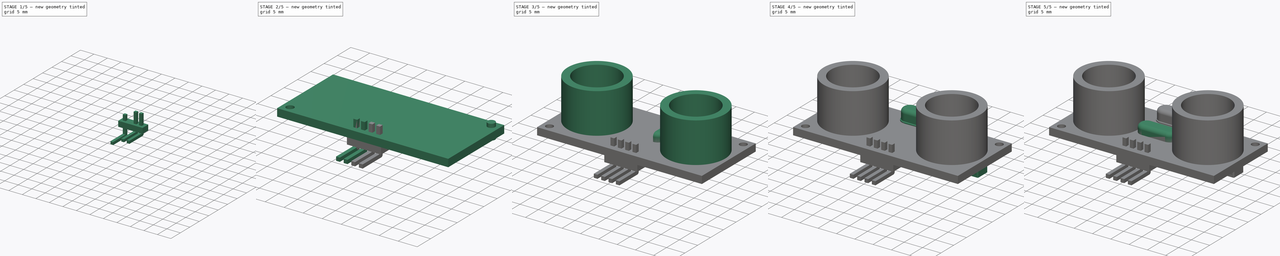
[diagram: build sequence overview — one tinted view per stage of 5, left to right]
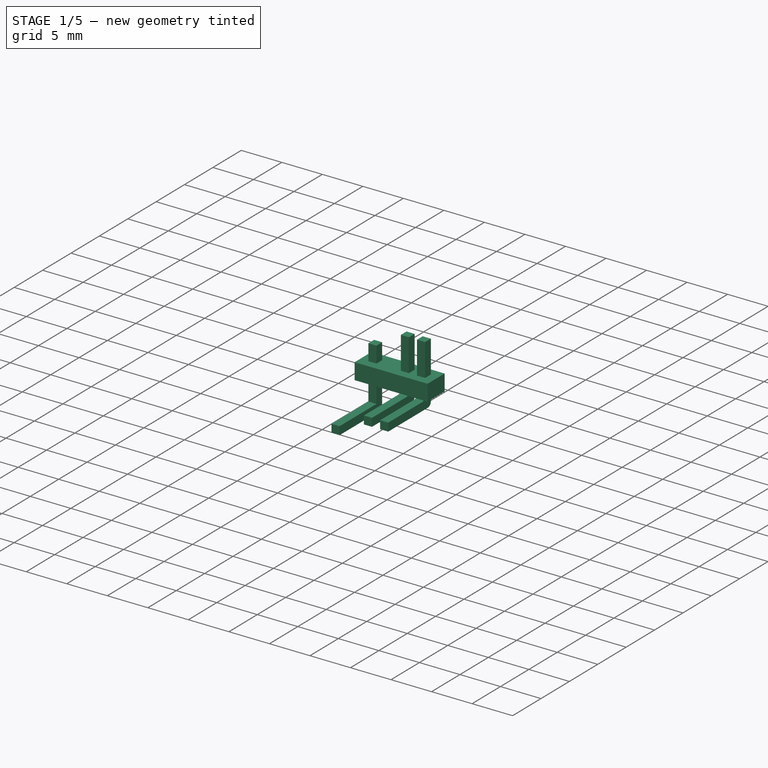
[diagram: stage 1 of 5 — iso view after this stage's code; geometry added in this stage tinted green]
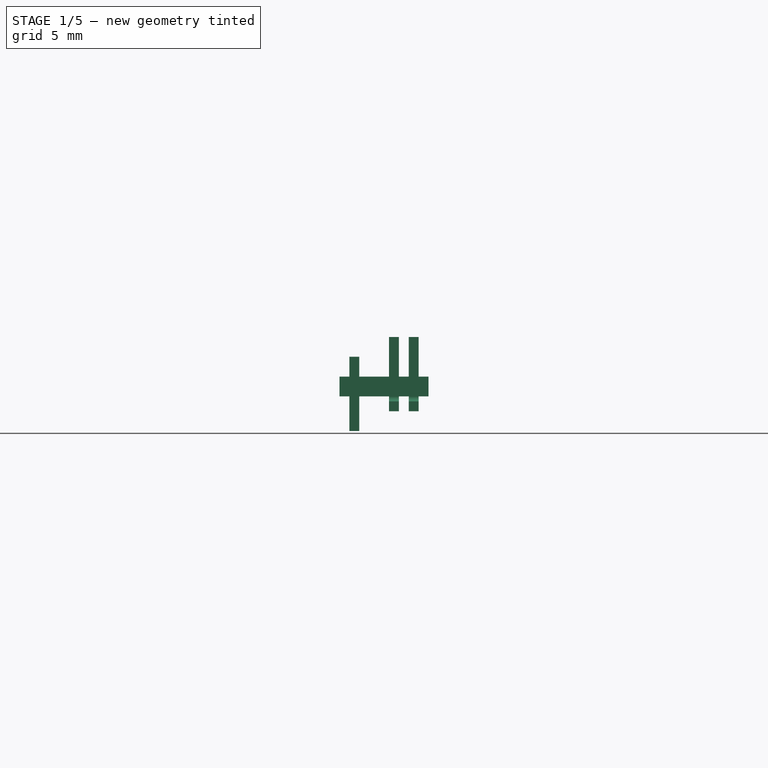
[diagram: stage 1 of 5 — front view after this stage's code; geometry added in this stage tinted green]
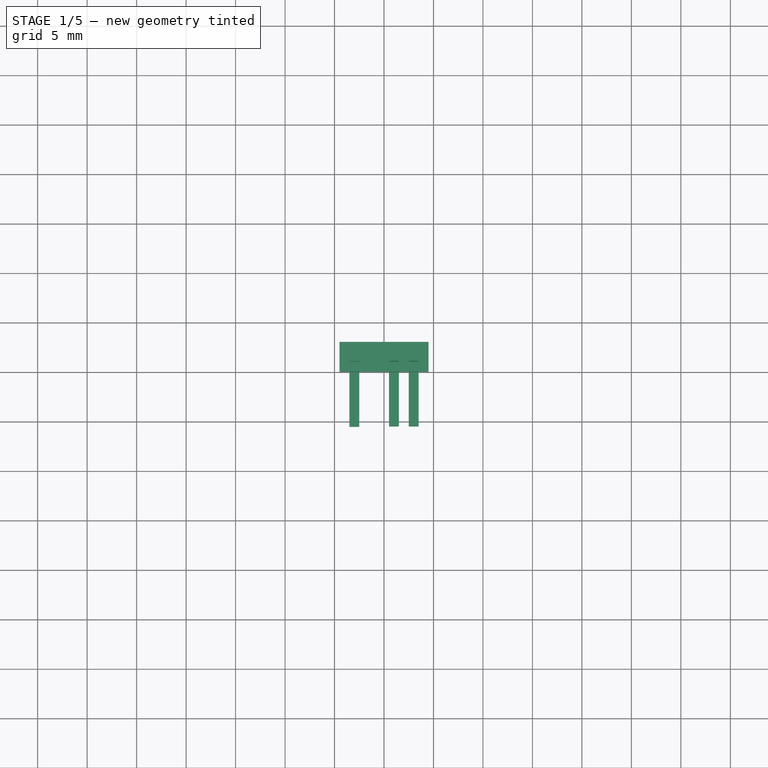
[diagram: stage 1 of 5 — top view after this stage's code; geometry added in this stage tinted green]
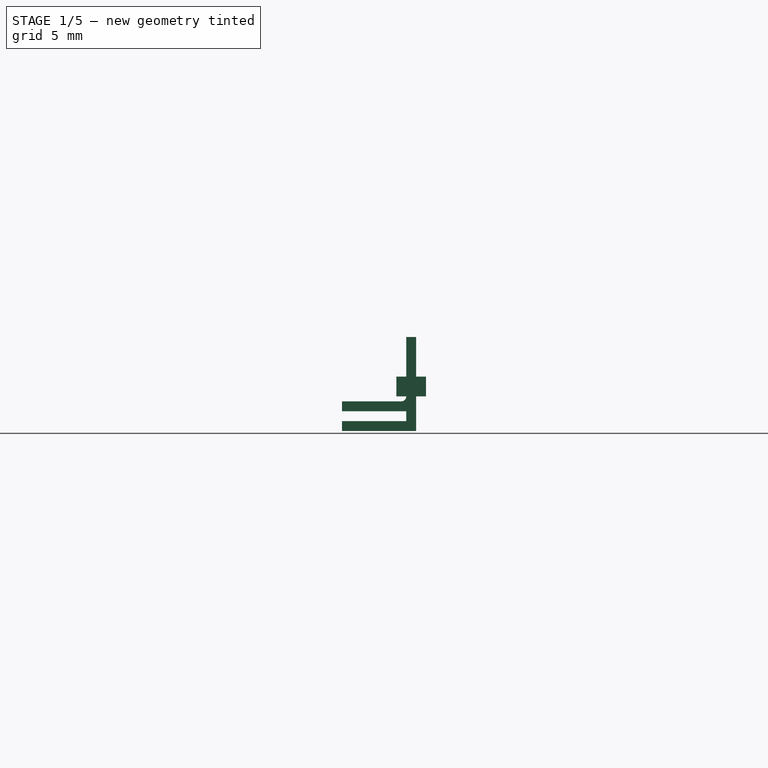
[diagram: stage 1 of 5 — right view after this stage's code; geometry added in this stage tinted green]
FCSTD DOCUMENT  (FreeCAD 0.18R16117 (Git))
Label: Board-HC-SR04
License: All rights reserved
LicenseURL: http://en.wikipedia.org/wiki/All_rights_reserved
objects: Part::MultiFuse×18, Sketcher::SketchObject×11, Part::Box×10, Part::Cylinder×8, Part::Fillet×8, Part::FeaturePython×6, PartDesign::Pad×5, App::MeasureDistance×5, Part::Cut×4, App::DocumentObjectGroup×3, Part::Feature×3, PartDesign::Revolution×2, Part::Mirroring×2, PartDesign::Pocket×2, Part::Sweep×1
note: 89 computed .brp shape members not serialized (recipe doc carries the construction recipe); baked Part::Feature solids carry a one-line shape summary decoded from their .brp

FEATURE [Part::Box] Box003  label="Conector002"
  AttacherType = Attacher::AttachEngine3D
  Height = 7.5
  Length = 1
  Placement = pos=(-3.5,-9,-5.5) rot=(0,0,1;0rad)
  Width = 1
FEATURE [Part::Box] Box004  label="Cubo001"
  AttacherType = Attacher::AttachEngine3D
  Height = 1
  Length = 1
  Placement = pos=(-3.5,-15.5,-5.5) rot=(0,0,1;0rad)
  Width = 7.5
FEATURE [Part::Box] Box005  label="Conector004"
  AttacherType = Attacher::AttachEngine3D
  Height = 7.5
  Length = 1
  Placement = pos=(-3.5,-9,-5.5) rot=(0,0,1;0rad)
  Width = 1
FEATURE [Part::Box] Box006  label="Cubo002"
  AttacherType = Attacher::AttachEngine3D
  Height = 1
  Length = 1
  Placement = pos=(-3.5,-15.5,-5.5) rot=(0,0,1;0rad)
  Width = 7.5
FEATURE [Part::MultiFuse] Fusion007
  Shapes = -> [Box005,Box006]
FEATURE [Part::Fillet] Fillet004
  Base = -> Fusion007
  Edges = 1 edges r=0.5: [Edge7]
FEATURE [Part::Fillet] Fillet005  label="Conector005"
  Base = -> Fillet004
  Edges = 1 edges r=0.5: [Edge20]
  Placement = pos=(4,0,2) rot=(0,0,1;0rad)
FEATURE [Part::Box] Box007  label="Conector006"
  AttacherType = Attacher::AttachEngine3D
  Height = 7.5
  Length = 1
  Placement = pos=(-3.5,-9,-5.5) rot=(0,0,1;0rad)
  Width = 1
FEATURE [Part::Box] Box008  label="Cubo003"
  AttacherType = Attacher::AttachEngine3D
  Height = 1
  Length = 1
  Placement = pos=(-3.5,-15.5,-5.5) rot=(0,0,1;0rad)
  Width = 7.5
FEATURE [Part::MultiFuse] Fusion008
  Shapes = -> [Box007,Box008]
FEATURE [Part::Fillet] Fillet006
  Base = -> Fusion008
  Edges = 1 edges r=0.5: [Edge7]
FEATURE [Part::Fillet] Fillet007  label="Conector007"
  Base = -> Fillet006
  Edges = 1 edges r=0.5: [Edge20]
  Placement = pos=(6,0,2) rot=(0,0,1;0rad)
FEATURE [Part::Box] Box009  label="Separador_conectores"
  AttacherType = Attacher::AttachEngine3D
  Height = 2
  Length = 9
  Placement = pos=(-4.5,-10,-2) rot=(0,0,1;0rad)
  Width = 3
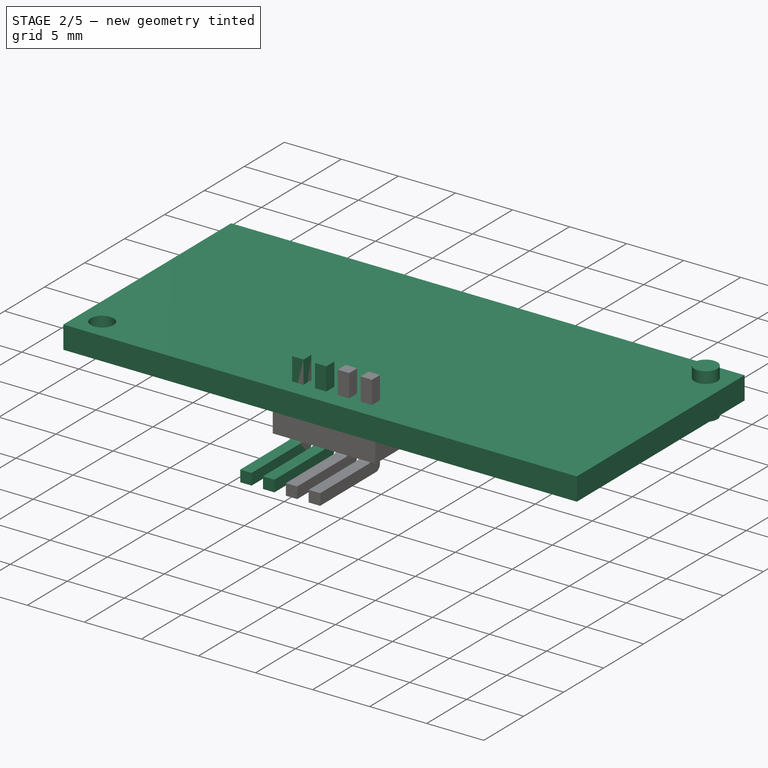
[diagram: stage 2 of 5 — iso view after this stage's code; geometry added in this stage tinted green]
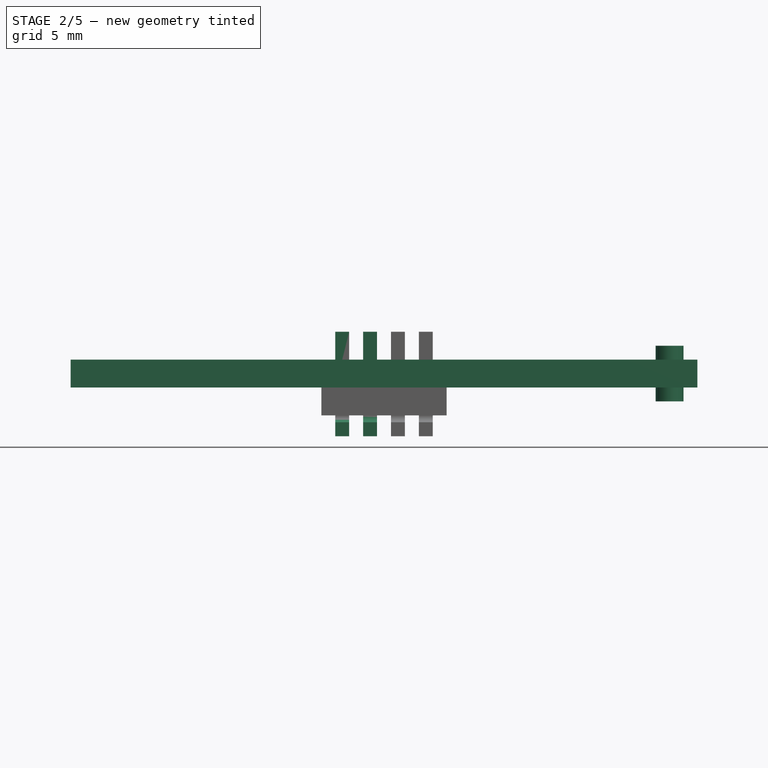
[diagram: stage 2 of 5 — front view after this stage's code; geometry added in this stage tinted green]
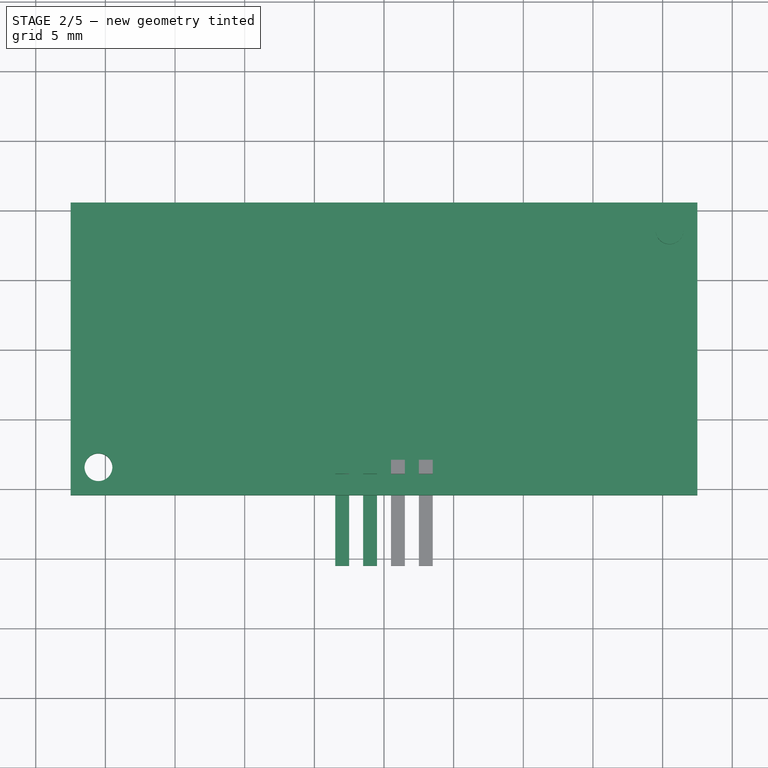
[diagram: stage 2 of 5 — top view after this stage's code; geometry added in this stage tinted green]
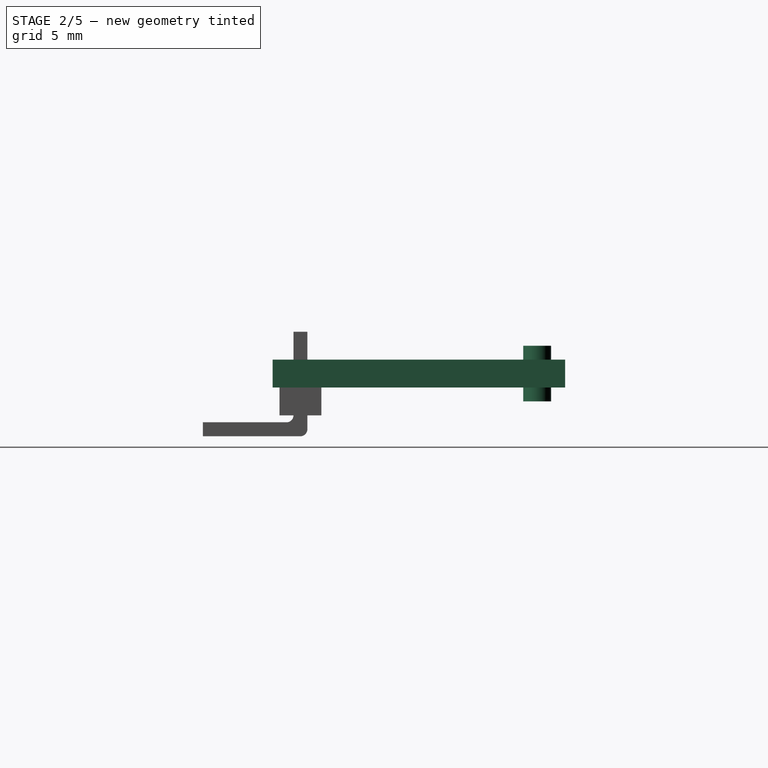
[diagram: stage 2 of 5 — right view after this stage's code; geometry added in this stage tinted green]
FEATURE [App::DocumentObjectGroup] Group  label="xtal-src"
  Group = -> [Fusion001,Pad002,Pocket,Pad003]
FEATURE [Part::Cylinder] Cylinder004  label="Taladro1"
  Angle = 360
  AttacherType = Attacher::AttachEngine3D
  Height = 4
  Placement = pos=(-20.5,-8.5,-1) rot=(0,0,1;0rad)
  Radius = 1
FEATURE [Part::Cylinder] Cylinder005  label="Taladro2"
  Angle = 360
  AttacherType = Attacher::AttachEngine3D
  Height = 4
  Placement = pos=(20.5,8.5,-1) rot=(0,0,1;0rad)
  Radius = 1
FEATURE [Part::Box] Box001  label="Conector"
  AttacherType = Attacher::AttachEngine3D
  Height = 7.5
  Length = 1
  Placement = pos=(-3.5,-9,-5.5) rot=(0,0,1;0rad)
  Width = 1
FEATURE [Part::Box] Box002  label="Cubo"
  AttacherType = Attacher::AttachEngine3D
  Height = 1
  Length = 1
  Placement = pos=(-3.5,-15.5,-5.5) rot=(0,0,1;0rad)
  Width = 7.5
FEATURE [Part::MultiFuse] Fusion005
  Shapes = -> [Box001,Box002]
FEATURE [Part::Fillet] Fillet
  Base = -> Fusion005
  Edges = 1 edges r=0.5: [Edge7]
FEATURE [Part::Fillet] Fillet001  label="Conector1"
  Base = -> Fillet
  Edges = 1 edges r=0.5: [Edge20]
  Placement = pos=(0,0,2) rot=(0,0,1;0rad)
FEATURE [Part::MultiFuse] Fusion006
  Shapes = -> [Box003,Box004]
FEATURE [Part::Fillet] Fillet002
  Base = -> Fusion006
  Edges = 1 edges r=0.5: [Edge7]
FEATURE [Part::Fillet] Fillet003  label="Conector003"
  Base = -> Fillet002
  Edges = 1 edges r=0.5: [Edge20]
  Placement = pos=(2,0,2) rot=(0,0,1;0rad)
FEATURE [Part::Box] Box  label="Placa base"
  AttacherType = Attacher::AttachEngine3D
  Height = 2
  Length = 45
  Placement = pos=(-22.5,-10.5,0) rot=(0,0,1;0rad)
  Width = 21
FEATURE [Part::Cut] Cut002
  Base = -> Box
  Tool = -> Cylinder004
FEATURE [Part::Feature] Fusion010  label="14SOIC"
  Placement = pos=(-22.5,6,0) rot=(1,0,0;3.14159rad)
  shape: bbox 5.802 x 8.7 x 1.655 mm, 194 faces (baked)
FEATURE [Part::Feature] Fusion011  label="14SOIC001"
  Placement = pos=(23.5,2.5,0) rot=(0.707107,-0.707107,0;3.14159rad)
  shape: bbox 8.7 x 5.802 x 1.655 mm, 194 faces (baked)
FEATURE [Part::Feature] Fusion012  label="14SOIC002"
  Placement = pos=(-5.5,-1.5,0) rot=(0.707107,0.707107,0;3.14159rad)
  shape: bbox 8.7 x 5.802 x 1.655 mm, 194 faces (baked)
FEATURE [Part::MultiFuse] Fusion013
  Shapes = -> [Fillet001,Fillet003,Fillet005,Fillet007,Box009]
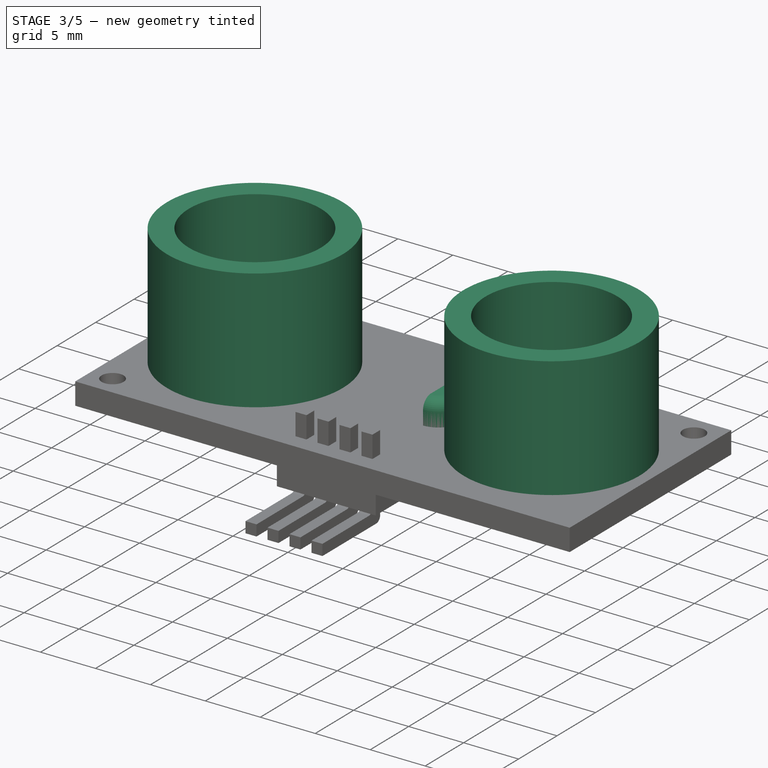
[diagram: stage 3 of 5 — iso view after this stage's code; geometry added in this stage tinted green]
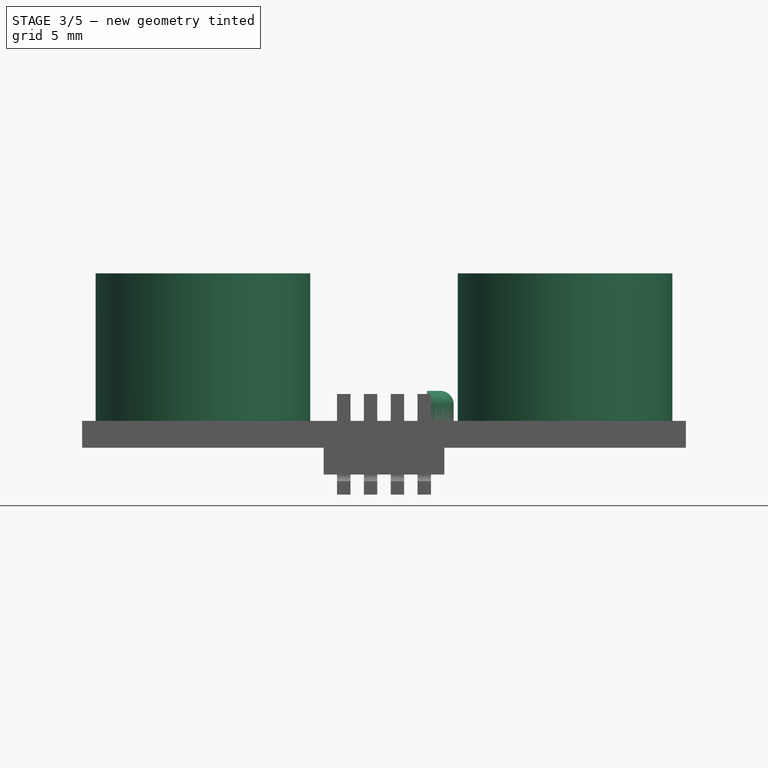
[diagram: stage 3 of 5 — front view after this stage's code; geometry added in this stage tinted green]
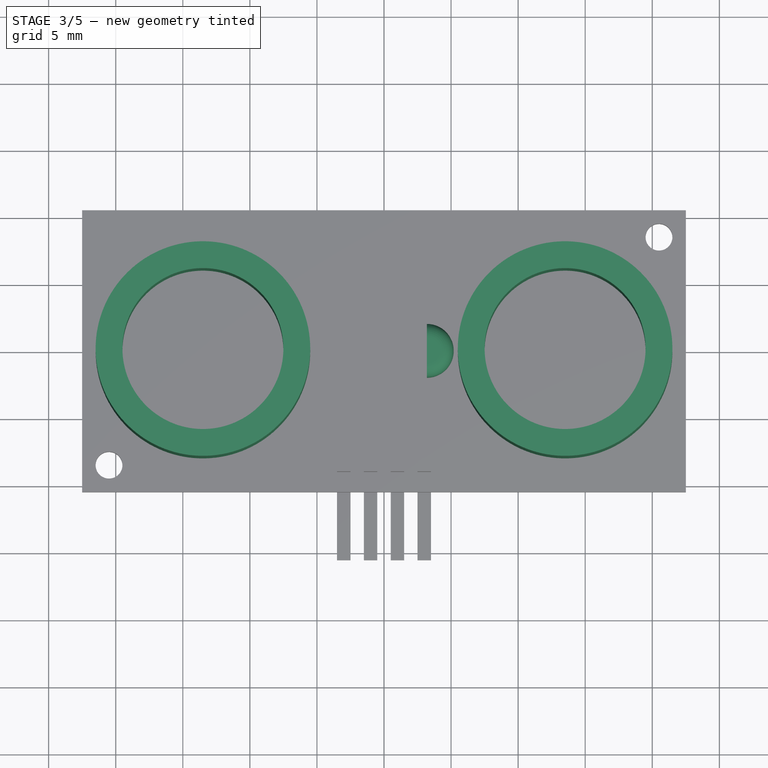
[diagram: stage 3 of 5 — top view after this stage's code; geometry added in this stage tinted green]
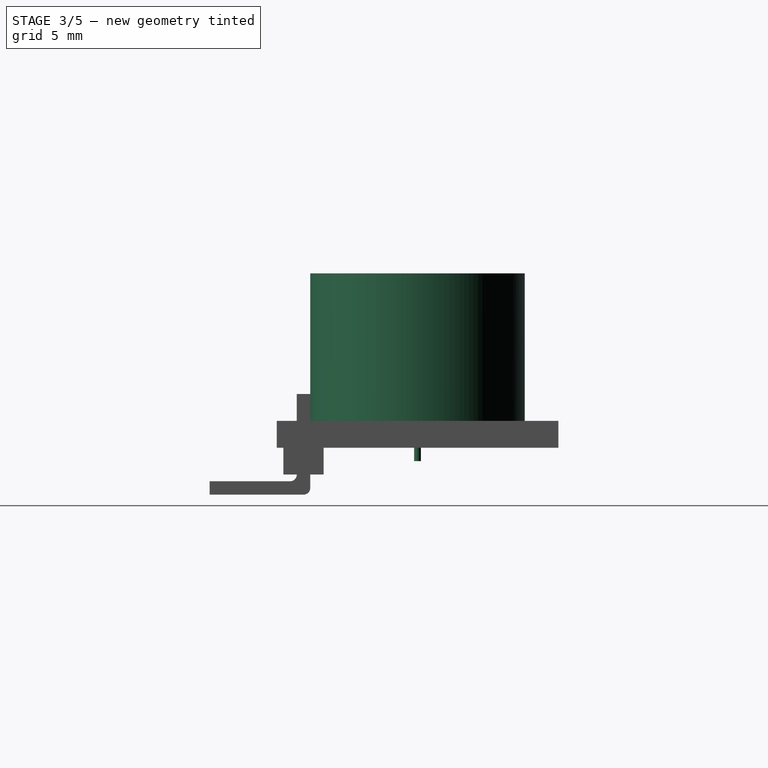
[diagram: stage 3 of 5 — right view after this stage's code; geometry added in this stage tinted green]
FEATURE [Part::Cylinder] Cylinder  label="Cilindro"
  Angle = 360
  AttacherType = Attacher::AttachEngine3D
  Height = 11
  Placement = pos=(-13.5,0,2) rot=(0,0,1;0rad)
  Radius = 8
FEATURE [Part::Cylinder] Cylinder001  label="Cilindro001"
  Angle = 360
  AttacherType = Attacher::AttachEngine3D
  Height = 13
  Placement = pos=(-13.5,0,1) rot=(0,0,1;0rad)
  Radius = 6
FEATURE [Part::Cut] Cut  label="Sensor T"
  Base = -> Cylinder
  Tool = -> Cylinder001
FEATURE [Part::Cylinder] Cylinder002  label="Cilindro002"
  Angle = 360
  AttacherType = Attacher::AttachEngine3D
  Height = 11
  Placement = pos=(-13.5,0,2) rot=(0,0,1;0rad)
  Radius = 8
FEATURE [Part::Cylinder] Cylinder003  label="Cilindro003"
  Angle = 360
  AttacherType = Attacher::AttachEngine3D
  Height = 13
  Placement = pos=(-13.5,0,1) rot=(0,0,1;0rad)
  Radius = 6
FEATURE [Part::Cut] Cut001  label="Sensor R"
  Base = -> Cylinder002
  Placement = pos=(27,0,0) rot=(0,0,1;0rad)
  Tool = -> Cylinder003
FEATURE [Sketcher::SketchObject] Sketch006  label="xtal-side-sketch002"
  MapMode = 5
  Placement = pos=(3.195,0.005,4e-15) rot=(0.57735,0.57735,0.57735;2.0944rad)
  sketch-geometry (7):
    g0: LineSegment StartX=0 StartY=4.24 StartZ=0 EndX=-1 EndY=4.24 EndZ=0
    g1: LineSegment StartX=-2 StartY=3.24 StartZ=0 EndX=-2 EndY=1.48 EndZ=0
    g2: LineSegment StartX=-2.2 StartY=1.28 StartZ=0 EndX=-2.2 EndY=0.64 EndZ=0
    g3: LineSegment StartX=0 StartY=4.24 StartZ=0 EndX=0 EndY=0.64 EndZ=0
    g4: ArcOfCircle CenterX=-1 CenterY=3.24 CenterZ=0 NormalX=0 NormalY=0 NormalZ=1 AngleXU=0 Radius=1 StartAngle=1.5708 EndAngle=3.14159
    g5: ArcOfCircle CenterX=-2.2 CenterY=1.48 CenterZ=0 NormalX=0 NormalY=0 NormalZ=1 AngleXU=0 Radius=0.2 StartAngle=4.71239 EndAngle=6.28319
    g6: LineSegment StartX=-2.2 StartY=0.64 StartZ=0 EndX=0 EndY=0.64 EndZ=0
  constraints (20):
    c: Horizontal(g0)
    c: Vertical(g1)
    c: Vertical(g2)
    c: PointOnObject(g0,g-2)
    c: Vertical(g3)
    c: Coincident(g3,g0)
    c: Tangent(g0,g4)
    c: Tangent(g1,g4)
    c: Tangent(g1,g5)
    c: Radius(g4) = 1
    c: DistanceX(g0) = -1
    c: DistanceY(g3) = -3.6
    c: Horizontal(g6)
    c: Coincident(g6,g3)
    c: Coincident(g6,g2)
    c: DistanceY(g-1,g3) = 0.64
    c: DistanceY(g1) = -1.76
    c: Coincident(g2,g5)
    c: Perpendicular(g2,g5)
    c: Radius(g5) = 0.2
FEATURE [PartDesign::Revolution] Revolution002  label="xtal-side002"
  Angle = 180
  Axis = (0,0,1)
  Base = (3.195,0.005,0)
  Placement = pos=(3.195,0.005,4e-15) rot=(0.57735,0.57735,0.57735;2.0944rad)
  Profile = -> Sketch006
  ReferenceAxis = -> Sketch006 [V_Axis]
FEATURE [Part::Cylinder] Cylinder006  label="pin_001"
  Angle = 360
  AttacherType = Attacher::AttachEngine3D
  Height = 2
  Placement = pos=(-2.5,0,-1) rot=(0,0,1;0rad)
  Radius = 0.25
FEATURE [Part::Cylinder] Cylinder007  label="pin_002"
  Angle = 360
  AttacherType = Attacher::AttachEngine3D
  Height = 2
  Placement = pos=(2.5,0,-1) rot=(0,0,1;0rad)
  Radius = 0.25
FEATURE [Part::MultiFuse] Fusion003  label="pins"
  Shapes = -> [Cylinder006,Cylinder007]
FEATURE [Part::Cut] Cut003  label="Placa perforada"
  Base = -> Cut002
  Tool = -> Cylinder005
FEATURE [Part::MultiFuse] Fusion014
  Shapes = -> [Cut003,Fusion013]
FEATURE [Part::MultiFuse] Fusion015
  Shapes = -> [Fusion014,Cut]
FEATURE [Part::MultiFuse] Fusion016
  Shapes = -> [Fusion015,Cut001]
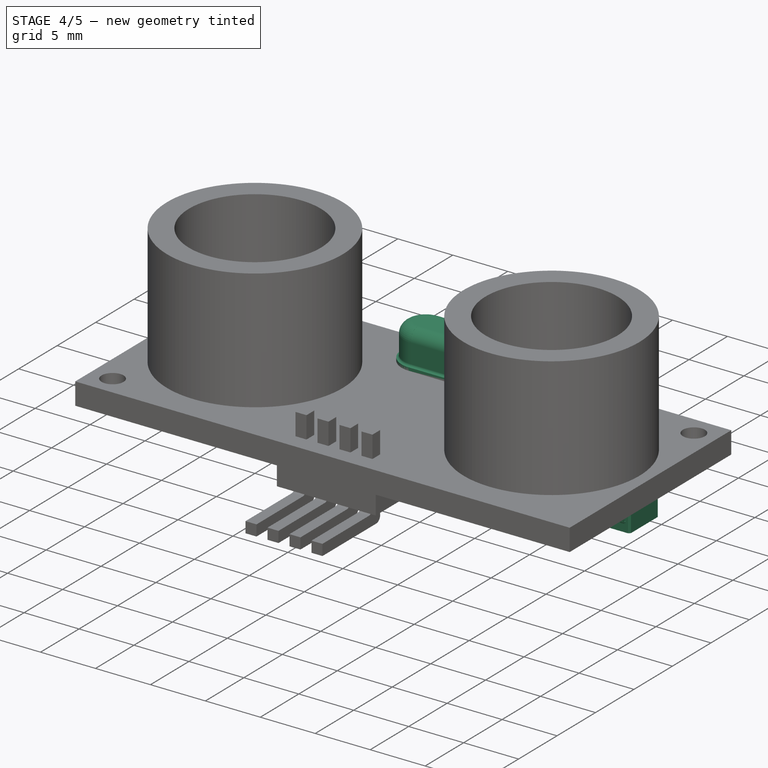
[diagram: stage 4 of 5 — iso view after this stage's code; geometry added in this stage tinted green]
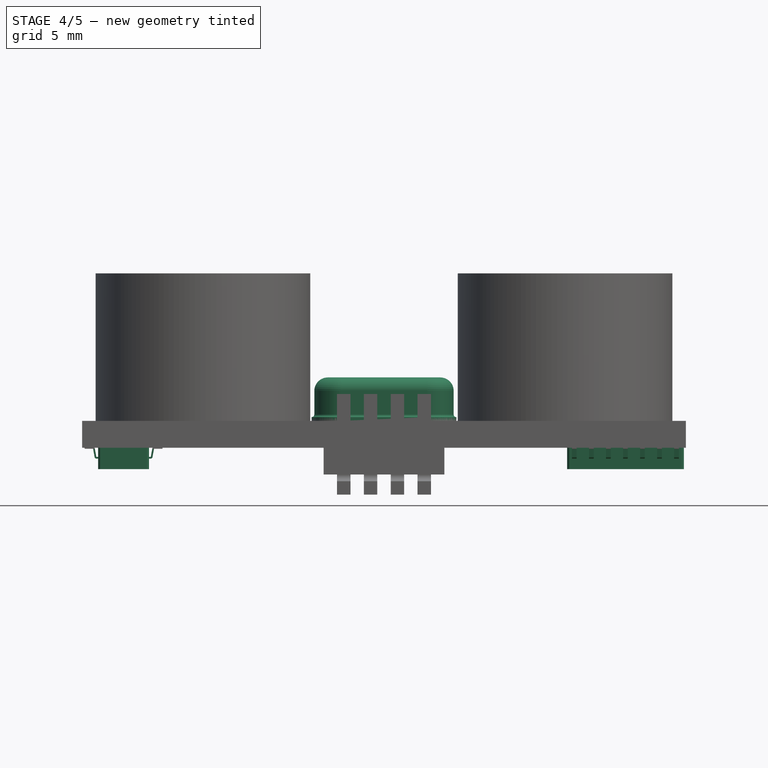
[diagram: stage 4 of 5 — front view after this stage's code; geometry added in this stage tinted green]
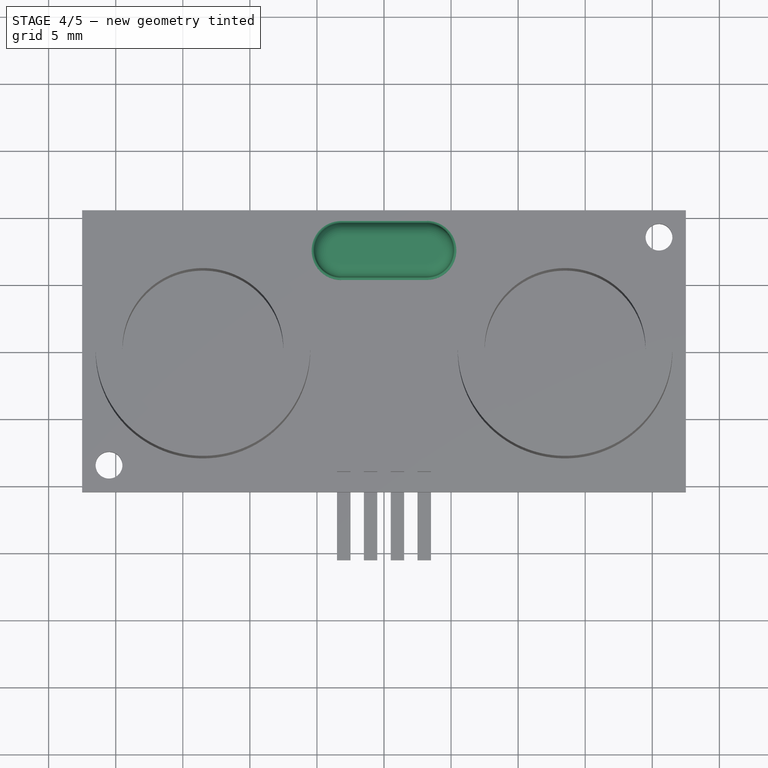
[diagram: stage 4 of 5 — top view after this stage's code; geometry added in this stage tinted green]
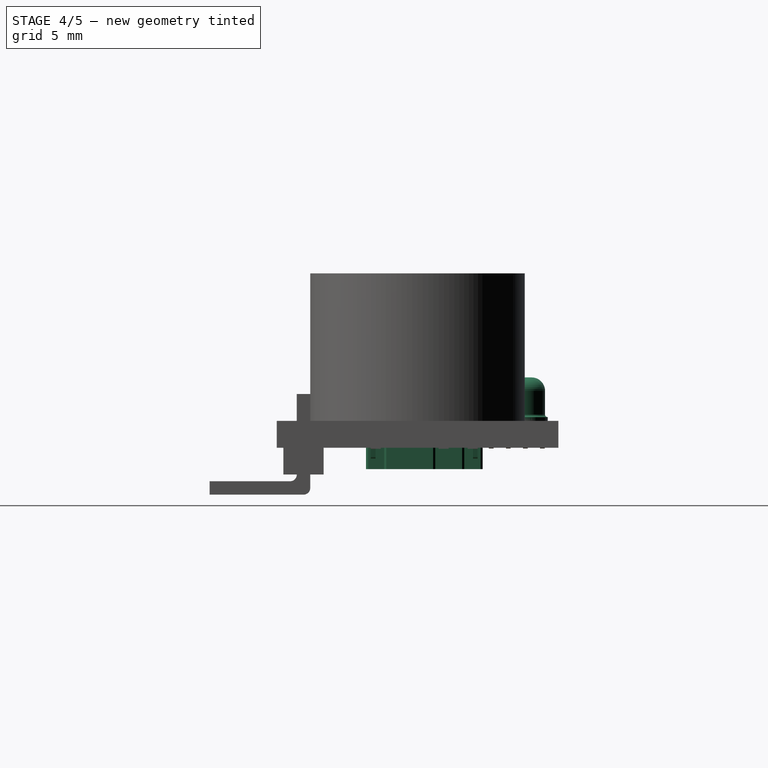
[diagram: stage 4 of 5 — right view after this stage's code; geometry added in this stage tinted green]
FEATURE [Sketcher::SketchObject] Sketch007  label="xtal-side-sketch003"
  MapMode = 5
  Placement = pos=(0,0,0) rot=(0.57735,0.57735,0.57735;2.0944rad)
  sketch-geometry (7):
    g0: LineSegment StartX=0 StartY=4.24 StartZ=0 EndX=-1 EndY=4.24 EndZ=0
    g1: LineSegment StartX=-2 StartY=3.24 StartZ=0 EndX=-2 EndY=1.48 EndZ=0
    g2: LineSegment StartX=-2.2 StartY=1.28 StartZ=0 EndX=-2.2 EndY=0.64 EndZ=0
    g3: LineSegment StartX=0 StartY=4.24 StartZ=0 EndX=0 EndY=0.64 EndZ=0
    g4: ArcOfCircle CenterX=-1 CenterY=3.24 CenterZ=0 NormalX=0 NormalY=0 NormalZ=1 AngleXU=0 Radius=1 StartAngle=1.5708 EndAngle=3.14159
    g5: ArcOfCircle CenterX=-2.2 CenterY=1.48 CenterZ=0 NormalX=0 NormalY=0 NormalZ=1 AngleXU=0 Radius=0.2 StartAngle=4.71239 EndAngle=6.28319
    g6: LineSegment StartX=-2.2 StartY=0.64 StartZ=0 EndX=0 EndY=0.64 EndZ=0
  constraints (20):
    c: Horizontal(g0)
    c: Vertical(g1)
    c: Vertical(g2)
    c: PointOnObject(g0,g-2)
    c: Vertical(g3)
    c: Coincident(g3,g0)
    c: Tangent(g0,g4)
    c: Tangent(g1,g4)
    c: Tangent(g1,g5)
    c: Radius(g4) = 1
    c: DistanceX(g0) = -1
    c: DistanceY(g3) = -3.6
    c: Horizontal(g6)
    c: Coincident(g6,g3)
    c: Coincident(g6,g2)
    c: DistanceY(g-1,g3) = 0.64
    c: DistanceY(g1) = -1.76
    c: Coincident(g2,g5)
    c: Perpendicular(g2,g5)
    c: Radius(g5) = 0.2
FEATURE [PartDesign::Pad] Pad004
  Length = 6.4
  Length2 = 100
  Midplane = true
  Placement = pos=(0,0,0) rot=(0.57735,0.57735,0.57735;2.0944rad)
  Profile = -> Sketch007
  Type = 0
FEATURE [Part::Mirroring] Part__Mirroring001  label="Pad (Mirror #1)001"
  Base = (0,0,0)
  Normal = (0,1,0)
  Source = -> Pad004
FEATURE [Part::MultiFuse] Fusion002
  Shapes = -> [Part__Mirroring001,Pad004]
FEATURE [App::DocumentObjectGroup] Group001  label="xtal-src001"
FEATURE [Part::FeaturePython] Clone004  label="xtal-side-003"  # Draft clone (typed FeaturePython)
  Objects = -> [Revolution002]
  Placement = pos=(-3.195,-0.005,0) rot=(0.57735,-0.57735,-0.57735;2.0944rad)
  Scale = (1,1,1)
FEATURE [Part::MultiFuse] Fusion004  label="xtal-through-hole"
  Placement = pos=(0,7.5,1) rot=(0,0,1;0rad)
  Shapes = -> [Fusion002,Revolution002,Clone004,Fusion003]
FEATURE [Sketcher::SketchObject] Sketch009  label="pin-path-sketch"
  MapMode = 5
  Placement = pos=(0,0,0) rot=(1,0,0;1.5708rad)
  sketch-geometry (5):
    g0: LineSegment StartX=8.02 StartY=0.75 StartZ=0 EndX=8.13 EndY=0.75 EndZ=0
    g1: LineSegment StartX=8.21863 StartY=0.675628 StartZ=0 EndX=8.32282 EndY=0.0847437 EndZ=0
    g2: LineSegment StartX=8.41145 StartY=0.010372 StartZ=0 EndX=9.02145 EndY=0.010372 EndZ=0
    g3: ArcOfCircle CenterX=8.13 CenterY=0.66 CenterZ=0 NormalX=0 NormalY=0 NormalZ=1 AngleXU=0 Radius=0.09 StartAngle=0.174533 EndAngle=1.5708
    g4: ArcOfCircle CenterX=8.41145 CenterY=0.100372 CenterZ=0 NormalX=0 NormalY=0 NormalZ=1 AngleXU=0 Radius=0.09 StartAngle=3.31613 EndAngle=4.71239
  constraints (14):
    c: Horizontal(g0)
    c: Horizontal(g2)
    c: Tangent(g0,g3)
    c: Tangent(g1,g3)
    c: Tangent(g1,g4)
    c: Tangent(g2,g4)
    c: Angle(g0,g1) = 1.74533
    c: DistanceX(g-1,g0) = 8.02
    c: DistanceY(g-1,g0) = 0.75
    c: DistanceX(g0) = 0.11
    c: Radius(g3) = 0.09
    c: Equal(g4,g3)
    c: Distance(g1) = 0.6
    c: DistanceX(g2) = 0.61
FEATURE [Sketcher::SketchObject] Sketch010  label="pin-section-sketch"
  MapMode = 5
  Placement = pos=(9.02145,0,0.010372) rot=(0.57735,0.57735,0.57735;2.0944rad)
  sketch-geometry (4):
    g0: LineSegment StartX=-0.175 StartY=0.065 StartZ=0 EndX=0.175 EndY=0.065 EndZ=0
    g1: LineSegment StartX=0.175 StartY=0.065 StartZ=0 EndX=0.175 EndY=-0.065 EndZ=0
    g2: LineSegment StartX=0.175 StartY=-0.065 StartZ=0 EndX=-0.175 EndY=-0.065 EndZ=0
    g3: LineSegment StartX=-0.175 StartY=-0.065 StartZ=0 EndX=-0.175 EndY=0.065 EndZ=0
  constraints (11):
    c: Coincident(g0,g1)
    c: Coincident(g1,g2)
    c: Coincident(g2,g3)
    c: Coincident(g3,g0)
    c: Horizontal(g0)
    c: Horizontal(g2)
    c: Vertical(g1)
    c: Vertical(g3)
    c: DistanceX(g0) = 0.35
    c: DistanceY(g3) = 0.13
    c: Symmetric(g0,g1,g-1)
FEATURE [Part::Sweep] Sweep  label="pin"
  Frenet = true
  Placement = pos=(0.00367852,1.69235,2.2e-14) rot=(0,0,1;0rad)
  Sections = -> [Sketch010]
  Solid = true
  Spine = -> Sketch009
  Transition = 1
FEATURE [Part::FeaturePython] Array  label="pin-array-1-src"  # Draft array (typed FeaturePython)
  Angle = 360
  ArrayType = 0
  Axis = (0,0,1)
  Base = -> Sweep
  Center = (0,0,0)
  IntervalX = (1,0,0)
  IntervalY = (0,1.27,0)
  IntervalZ = (0,0,1)
  NumberPolar = 1
  NumberX = 1
  NumberY = 7
  NumberZ = 1
  Placement = pos=(-3.04,0,0) rot=(0,0,1;0rad)
FEATURE [App::DocumentObjectGroup] Group002  label="src"
  Group = -> [Pad,Pocket001,Sketch009,Array]
FEATURE [Part::FeaturePython] Clone005  label="pin-array-1"  # Draft clone (typed FeaturePython)
  Objects = -> [Array]
  Placement = pos=(-3.04,0,0) rot=(0,0,1;0rad)
  Scale = (1,1,1)
FEATURE [Part::FeaturePython] Clone006  label="pin-array-2"  # Draft clone (typed FeaturePython)
  Objects = -> [Clone005]
  Placement = pos=(9.208,11,0) rot=(0,0,1;3.14159rad)
  Scale = (1,1,1)
FEATURE [Part::MultiFuse] Fusion017
  Shapes = -> [Fusion016,Fusion004]
FEATURE [Part::MultiFuse] Fusion018
  Shapes = -> [Fusion017,Fusion011]
FEATURE [Part::MultiFuse] Fusion019
  Shapes = -> [Fusion018,Fusion012]
FEATURE [Part::MultiFuse] Fusion020  label="HC-SR04"
  Shapes = -> [Fusion019,Fusion010]
FEATURE [App::MeasureDistance] Distance  label="Distance: 21.00 mm"
  Distance = 21
  P1 = (22.5,10.5,2)
  P2 = (22.5,-10.5,2)
FEATURE [App::MeasureDistance] Distance001  label="Distance: 45.00 mm"
  Distance = 45
  P1 = (-22.5,10.5,2)
  P2 = (22.5,10.5,2)
FEATURE [App::MeasureDistance] Distance002  label="Distance: 27.00 mm"
  Distance = 27
  P1 = (-7.5,-1.5e-15,13)
  P2 = (19.5,-1.5e-15,13)
FEATURE [App::MeasureDistance] Distance003  label="Distance: 15.88 mm"
  Distance = 15.8817
  P1 = (12.5357,7.94167,13)
  P2 = (12.5292,-7.94006,13)
FEATURE [App::MeasureDistance] Distance004  label="Distance: 2.56 mm"
  Distance = 2.56291
  P1 = (12.602,7.94167,2.0552)
  P2 = (12.7448,10.5,2)
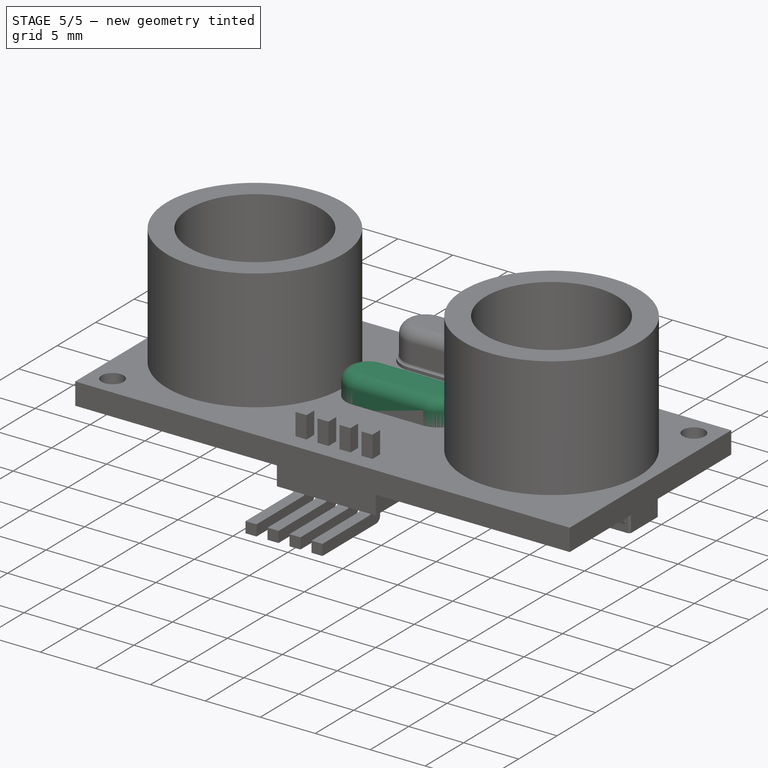
[diagram: stage 5 of 5 — iso view after this stage's code; geometry added in this stage tinted green]
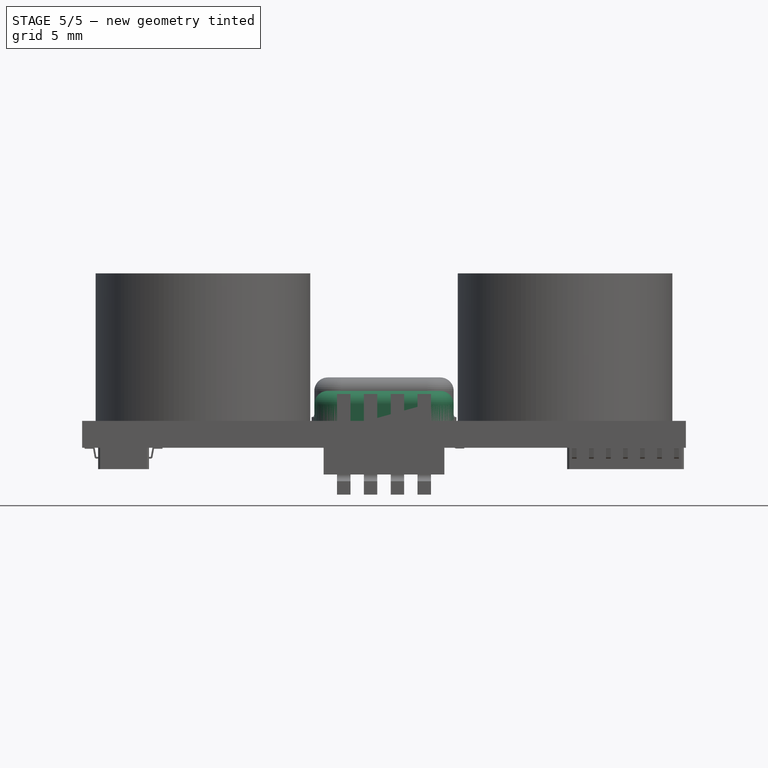
[diagram: stage 5 of 5 — front view after this stage's code; geometry added in this stage tinted green]
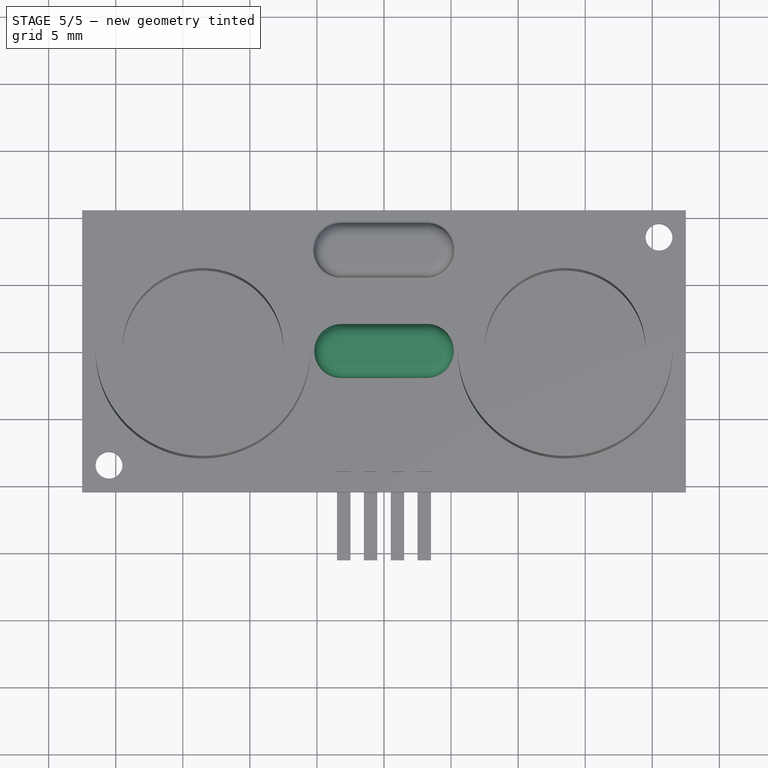
[diagram: stage 5 of 5 — top view after this stage's code; geometry added in this stage tinted green]
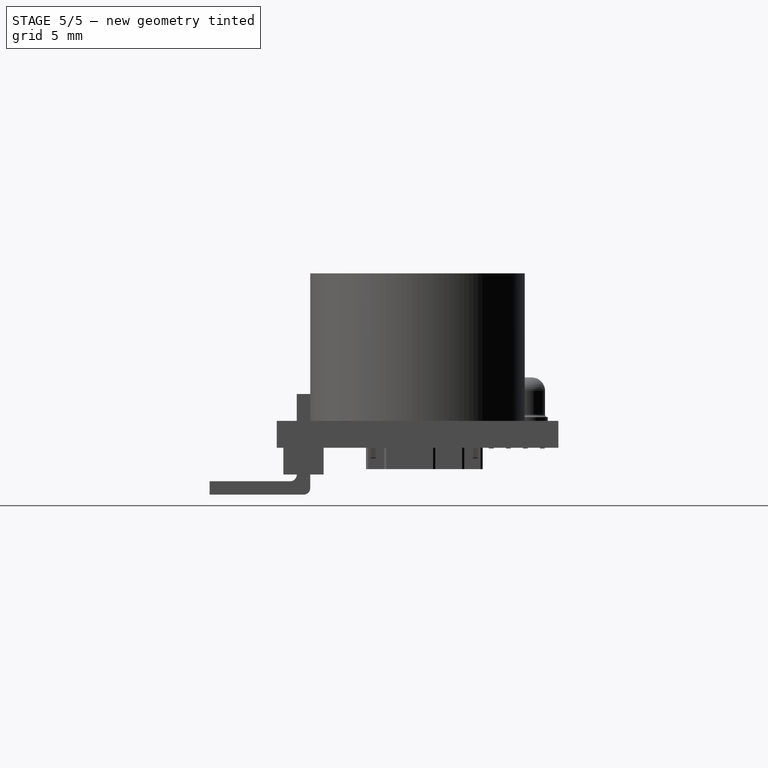
[diagram: stage 5 of 5 — right view after this stage's code; geometry added in this stage tinted green]
FEATURE [Sketcher::SketchObject] Sketch001  label="xtal-side-sketch"
  MapMode = 5
  Placement = pos=(3.195,0.005,4e-15) rot=(0.57735,0.57735,0.57735;2.0944rad)
  sketch-geometry (7):
    g0: LineSegment StartX=0 StartY=4.24 StartZ=0 EndX=-1 EndY=4.24 EndZ=0
    g1: LineSegment StartX=-2 StartY=3.24 StartZ=0 EndX=-2 EndY=1.48 EndZ=0
    g2: LineSegment StartX=-2.2 StartY=1.28 StartZ=0 EndX=-2.2 EndY=0.64 EndZ=0
    g3: LineSegment StartX=0 StartY=4.24 StartZ=0 EndX=0 EndY=0.64 EndZ=0
    g4: ArcOfCircle CenterX=-1 CenterY=3.24 CenterZ=0 NormalX=0 NormalY=0 NormalZ=1 AngleXU=0 Radius=1 StartAngle=1.5708 EndAngle=3.14159
    g5: ArcOfCircle CenterX=-2.2 CenterY=1.48 CenterZ=0 NormalX=0 NormalY=0 NormalZ=1 AngleXU=0 Radius=0.2 StartAngle=4.71239 EndAngle=6.28319
    g6: LineSegment StartX=-2.2 StartY=0.64 StartZ=0 EndX=0 EndY=0.64 EndZ=0
  constraints (20):
    c: Horizontal(g0)
    c: Vertical(g1)
    c: Vertical(g2)
    c: PointOnObject(g0,g-2)
    c: Vertical(g3)
    c: Coincident(g3,g0)
    c: Tangent(g0,g4)
    c: Tangent(g1,g4)
    c: Tangent(g1,g5)
    c: Radius(g4) = 1
    c: DistanceX(g0) = -1
    c: DistanceY(g3) = -3.6
    c: Horizontal(g6)
    c: Coincident(g6,g3)
    c: Coincident(g6,g2)
    c: DistanceY(g-1,g3) = 0.64
    c: DistanceY(g1) = -1.76
    c: Coincident(g2,g5)
    c: Perpendicular(g2,g5)
    c: Radius(g5) = 0.2
FEATURE [PartDesign::Revolution] Revolution001  label="xtal-side001"
  Angle = 180
  Axis = (0,0,1)
  Base = (3.195,0.005,0)
  Placement = pos=(3.195,0.005,4e-15) rot=(0.57735,0.57735,0.57735;2.0944rad)
  Profile = -> Sketch001
  ReferenceAxis = -> Sketch001 [V_Axis]
FEATURE [Part::FeaturePython] Clone  label="xtal-side-2"  # Draft clone (typed FeaturePython)
  Objects = -> [Revolution001]
  Placement = pos=(-3.195,-0.005,4e-15) rot=(-0.57735,0.57735,0.57735;4.18879rad)
  Scale = (1,1,1)
FEATURE [Sketcher::SketchObject] Sketch002  label="xtal-side-sketch001"
  MapMode = 5
  Placement = pos=(0,0,0) rot=(0.57735,0.57735,0.57735;2.0944rad)
  sketch-geometry (7):
    g0: LineSegment StartX=0 StartY=4.24 StartZ=0 EndX=-1 EndY=4.24 EndZ=0
    g1: LineSegment StartX=-2 StartY=3.24 StartZ=0 EndX=-2 EndY=1.48 EndZ=0
    g2: LineSegment StartX=-2.2 StartY=1.28 StartZ=0 EndX=-2.2 EndY=0.64 EndZ=0
    g3: LineSegment StartX=0 StartY=4.24 StartZ=0 EndX=0 EndY=0.64 EndZ=0
    g4: ArcOfCircle CenterX=-1 CenterY=3.24 CenterZ=0 NormalX=0 NormalY=0 NormalZ=1 AngleXU=0 Radius=1 StartAngle=1.5708 EndAngle=3.14159
    g5: ArcOfCircle CenterX=-2.2 CenterY=1.48 CenterZ=0 NormalX=0 NormalY=0 NormalZ=1 AngleXU=0 Radius=0.2 StartAngle=4.71239 EndAngle=6.28319
    g6: LineSegment StartX=-2.2 StartY=0.64 StartZ=0 EndX=0 EndY=0.64 EndZ=0
  constraints (20):
    c: Horizontal(g0)
    c: Vertical(g1)
    c: Vertical(g2)
    c: PointOnObject(g0,g-2)
    c: Vertical(g3)
    c: Coincident(g3,g0)
    c: Tangent(g0,g4)
    c: Tangent(g1,g4)
    c: Tangent(g1,g5)
    c: Radius(g4) = 1
    c: DistanceX(g0) = -1
    c: DistanceY(g3) = -3.6
    c: Horizontal(g6)
    c: Coincident(g6,g3)
    c: Coincident(g6,g2)
    c: DistanceY(g-1,g3) = 0.64
    c: DistanceY(g1) = -1.76
    c: Coincident(g2,g5)
    c: Perpendicular(g2,g5)
    c: Radius(g5) = 0.2
FEATURE [PartDesign::Pad] Pad001
  Length = 6.4
  Length2 = 100
  Midplane = true
  Placement = pos=(0,0,0) rot=(0.57735,0.57735,0.57735;2.0944rad)
  Profile = -> Sketch002
  Type = 0
FEATURE [Part::Mirroring] Part__Mirroring  label="Pad (Mirror #1)"
  Base = (0,0,0)
  Normal = (0,1,0)
  Source = -> Pad001
FEATURE [Part::MultiFuse] Fusion
  Shapes = -> [Part__Mirroring,Pad001]
FEATURE [Part::MultiFuse] Fusion001  label="xtal-body"
  Shapes = -> [Fusion,Clone,Revolution001]
FEATURE [Sketcher::SketchObject] Sketch003  label="main-base-sketch"
  MapMode = 5
  sketch-geometry (4):
    g0: LineSegment StartX=-5.7 StartY=2.415 StartZ=0 EndX=5.7 EndY=2.415 EndZ=0
    g1: LineSegment StartX=5.7 StartY=2.415 StartZ=0 EndX=5.7 EndY=-2.415 EndZ=0
    g2: LineSegment StartX=5.7 StartY=-2.415 StartZ=0 EndX=-5.7 EndY=-2.415 EndZ=0
    g3: LineSegment StartX=-5.7 StartY=-2.415 StartZ=0 EndX=-5.7 EndY=2.415 EndZ=0
  constraints (11):
    c: Coincident(g0,g1)
    c: Coincident(g1,g2)
    c: Coincident(g2,g3)
    c: Coincident(g3,g0)
    c: Horizontal(g0)
    c: Horizontal(g2)
    c: Vertical(g1)
    c: Vertical(g3)
    c: Symmetric(g0,g1,g-1)
    c: DistanceX(g2) = -11.4
    c: DistanceY(g1) = -4.83
FEATURE [PartDesign::Pad] Pad002  label="main-base"
  Length = 0.64
  Length2 = 100
  Profile = -> Sketch003
  Type = 0
FEATURE [Sketcher::SketchObject] Sketch004  label="base-cutout-1-sketch"
  ExternalGeometry = -> [Pad002]
  MapMode = 5
  Placement = pos=(0,0,0) rot=(1,0,0;3.14159rad)
  Support = -> [Pad002]
  sketch-geometry (8):
    g0: LineSegment StartX=-5.7 StartY=0.59 StartZ=0 EndX=-1.7 EndY=0.59 EndZ=0
    g1: LineSegment StartX=-1.7 StartY=0.59 StartZ=0 EndX=-1.7 EndY=-0.59 EndZ=0
    g2: LineSegment StartX=-1.7 StartY=-0.59 StartZ=0 EndX=-5.7 EndY=-0.59 EndZ=0
    g3: LineSegment StartX=-5.7 StartY=-0.59 StartZ=0 EndX=-5.7 EndY=0.59 EndZ=0
    g4: LineSegment StartX=5.7 StartY=0.59 StartZ=0 EndX=1.7 EndY=0.59 EndZ=0
    g5: LineSegment StartX=1.7 StartY=0.59 StartZ=0 EndX=1.7 EndY=-0.59 EndZ=0
    g6: LineSegment StartX=1.7 StartY=-0.59 StartZ=0 EndX=5.7 EndY=-0.59 EndZ=0
    g7: LineSegment StartX=5.7 StartY=-0.59 StartZ=0 EndX=5.7 EndY=0.59 EndZ=0
  constraints (22):
    c: Coincident(g0,g1)
    c: Coincident(g1,g2)
    c: Coincident(g2,g3)
    c: Coincident(g3,g0)
    c: Horizontal(g0)
    c: Horizontal(g2)
    c: Vertical(g1)
    c: Vertical(g3)
    c: PointOnObject(g0,g-3)
    c: DistanceX(g0) = 4
    c: DistanceY(g1) = -1.18
    c: Coincident(g4,g5)
    c: Coincident(g5,g6)
    c: Coincident(g6,g7)
    c: Coincident(g7,g4)
    c: Horizontal(g4)
    c: Horizontal(g6)
    c: Vertical(g7)
    c: Symmetric(g4,g0,g-2)
    c: Symmetric(g4,g5,g-1)
    c: Symmetric(g5,g1,g-2)
    c: Symmetric(g4,g0,g-2)
FEATURE [PartDesign::Pocket] Pocket  label="base-cutout-1"
  Length = 0.32
  Length2 = 100
  Profile = -> Sketch004
  Type = 0
FEATURE [Sketcher::SketchObject] Sketch005
  MapMode = 5
  sketch-geometry (8):
    g0: LineSegment StartX=-6.2 StartY=0.42 StartZ=0 EndX=-1.9 EndY=0.42 EndZ=0
    g1: LineSegment StartX=-1.9 StartY=0.42 StartZ=0 EndX=-1.9 EndY=-0.42 EndZ=0
    g2: LineSegment StartX=-1.9 StartY=-0.42 StartZ=0 EndX=-6.2 EndY=-0.42 EndZ=0
    g3: LineSegment StartX=-6.2 StartY=-0.42 StartZ=0 EndX=-6.2 EndY=0.42 EndZ=0
    g4: LineSegment StartX=1.9 StartY=0.42 StartZ=0 EndX=6.2 EndY=0.42 EndZ=0
    g5: LineSegment StartX=6.2 StartY=0.42 StartZ=0 EndX=6.2 EndY=-0.42 EndZ=0
    g6: LineSegment StartX=6.2 StartY=-0.42 StartZ=0 EndX=1.9 EndY=-0.42 EndZ=0
    g7: LineSegment StartX=1.9 StartY=-0.42 StartZ=0 EndX=1.9 EndY=0.42 EndZ=0
  constraints (23):
    c: Coincident(g0,g1)
    c: Coincident(g1,g2)
    c: Coincident(g2,g3)
    c: Coincident(g3,g0)
    c: Horizontal(g0)
    c: Horizontal(g2)
    c: Vertical(g1)
    c: Vertical(g3)
    c: Symmetric(g2,g0,g-1)
    c: DistanceX(g0,g0) = 4.3
    c: DistanceY(g1) = -0.84
    c: DistanceX(g-1,g1) = -1.9
    c: Coincident(g4,g5)
    c: Coincident(g5,g6)
    c: Coincident(g6,g7)
    c: Coincident(g7,g4)
    c: Horizontal(g4)
    c: Horizontal(g6)
    c: Vertical(g5)
    c: Vertical(g7)
    c: Symmetric(g1,g6,g-2)
    c: Symmetric(g4,g0,g-2)
    c: Symmetric(g4,g0,g-2)
FEATURE [PartDesign::Pad] Pad003  label="smd-pins"
  Length = 0.32
  Length2 = 100
  Profile = -> Sketch005
  Type = 0
FEATURE [Sketcher::SketchObject] Sketch  label="main-body-sketch"
  MapMode = 5
  sketch-geometry (10):
    g0: LineSegment StartX=1.34 StartY=9.8438 StartZ=0 EndX=4.8276 EndY=9.8438 EndZ=0
    g1: LineSegment StartX=4.8276 StartY=9.8438 StartZ=0 EndX=4.9838 EndY=9.6876 EndZ=0
    g2: LineSegment StartX=4.9838 StartY=9.6876 StartZ=0 EndX=4.9838 EndY=1.3 EndZ=0
    g3: LineSegment StartX=4.9838 StartY=1.3 StartZ=0 EndX=4.8276 EndY=1.1438 EndZ=0
    g4: LineSegment StartX=4.8276 StartY=1.1438 StartZ=0 EndX=1.34 EndY=1.1438 EndZ=0
    g5: LineSegment StartX=1.34 StartY=1.1438 StartZ=0 EndX=1.1838 EndY=1.3 EndZ=0
    g6: LineSegment StartX=1.34 StartY=9.8438 StartZ=0 EndX=1.1838 EndY=9.6876 EndZ=0
    g7: LineSegment StartX=1.1838 StartY=9.6876 StartZ=0 EndX=1.1838 EndY=1.3 EndZ=0
    g8: LineSegment [constr] StartX=1.1838 StartY=9.6876 StartZ=0 EndX=4.9838 EndY=9.6876 EndZ=0
    g9: LineSegment [constr] StartX=1.34 StartY=9.8438 StartZ=0 EndX=1.34 EndY=1.1438 EndZ=0
  constraints (28):
    c: Horizontal(g0)
    c: Coincident(g0,g1)
    c: Coincident(g1,g2)
    c: Vertical(g2)
    c: Coincident(g2,g3)
    c: Coincident(g3,g4)
    c: Horizontal(g4)
    c: Coincident(g4,g5)
    c: Coincident(g0,g6)
    c: Coincident(g6,g7)
    c: Coincident(g7,g5)
    c: Vertical(g7)
    c: Equal(g7,g2)
    c: Horizontal(g8)
    c: Coincident(g8,g6)
    c: Coincident(g8,g1)
    c: Vertical(g9)
    c: Coincident(g9,g0)
    c: Coincident(g9,g4)
    c: Angle(g8,g6) = 0.785398
    c: Equal(g6,g3)
    c: Parallel(g6,g3)
    c: DistanceY(g9) = -8.7
    c: DistanceX(g-1,g4) = 1.34
    c: DistanceY(g-1,g5) = 1.3
    c: Equal(g6,g1)
    c: Distance(g6) = 0.220902
    c: DistanceX(g8) = 3.8
FEATURE [PartDesign::Pad] Pad  label="main-body"
  Length = 1.6
  Length2 = 100
  Profile = -> Sketch
  Type = 0
FEATURE [Sketcher::SketchObject] Sketch008  label="top-circle-mark-sketch"
  MapMode = 5
  Placement = pos=(0,0,1.6) rot=(0,0,1;0rad)
  Support = -> [Pad]
  sketch-geometry (1):
    g0: Circle CenterX=4.4 CenterY=1.6 CenterZ=0 NormalX=0 NormalY=0 NormalZ=1 AngleXU=0 Radius=0.2
  constraints (3):
    c: Radius(g0) = 0.2
    c: DistanceY(g-1,g0) = 1.6
    c: DistanceX(g0) = 4.4
FEATURE [PartDesign::Pocket] Pocket001  label="top-circle-mark"
  Length = 0.02
  Length2 = 100
  Profile = -> Sketch008
  Type = 0
FEATURE [Part::FeaturePython] Clone003  label="ic-body"  # Draft clone (typed FeaturePython)
  Objects = -> [Pocket001]
  Scale = (1,1,1)
FEATURE [Part::MultiFuse] Fusion009  label="SOIC-N"
  Shapes = -> [Clone006,Clone003,Clone005]
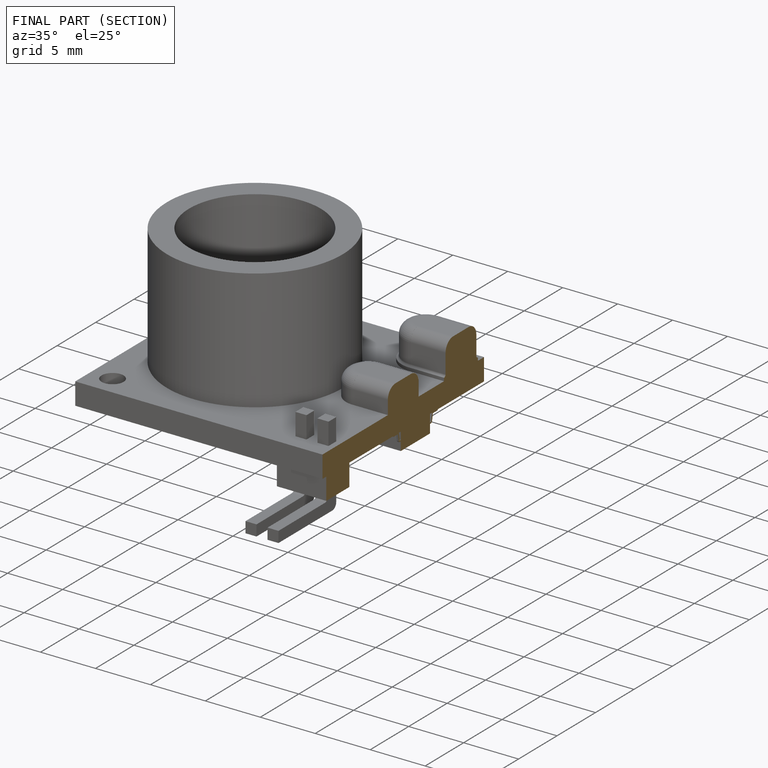
[diagram: finished part — half-section view (interior)]
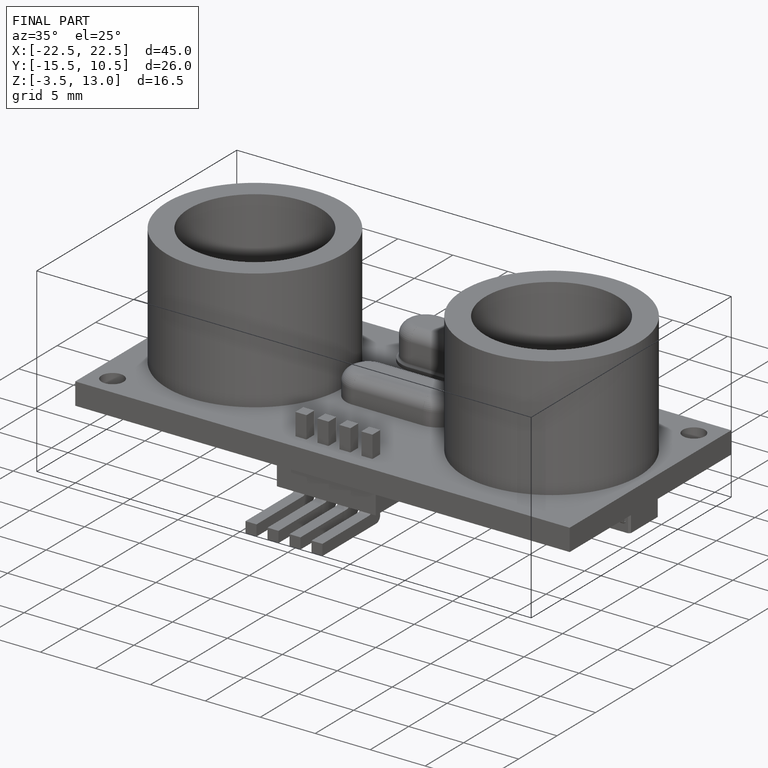
[diagram: finished part — iso view with bounding-box wireframe]
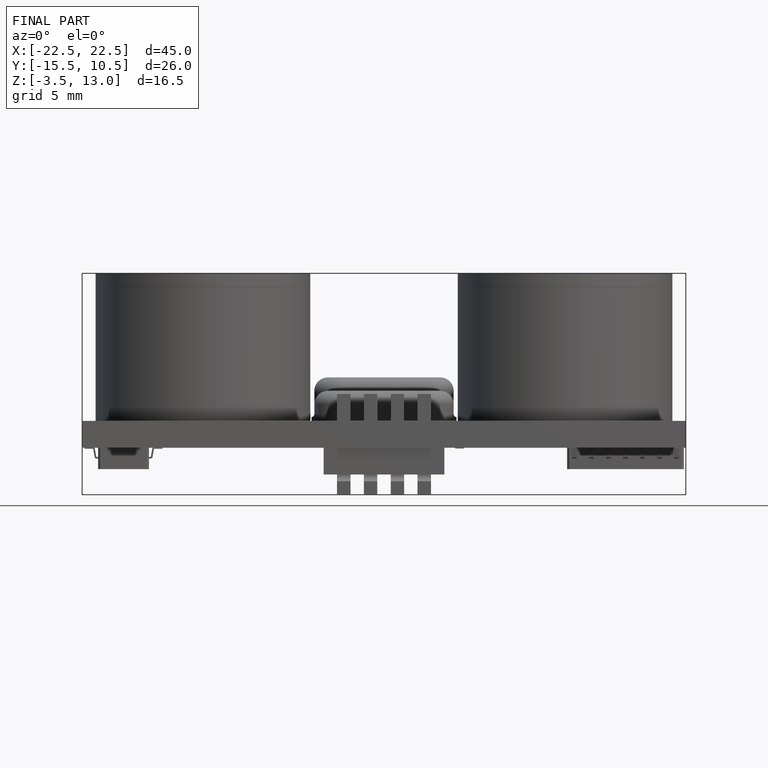
[diagram: finished part — front view with bounding-box wireframe]
